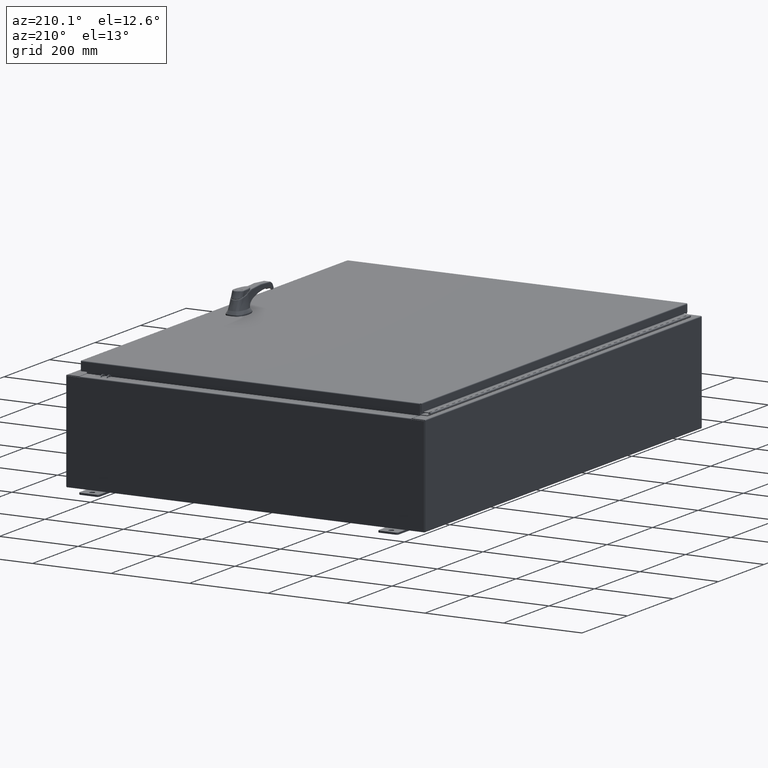
[diagram: clean part render]
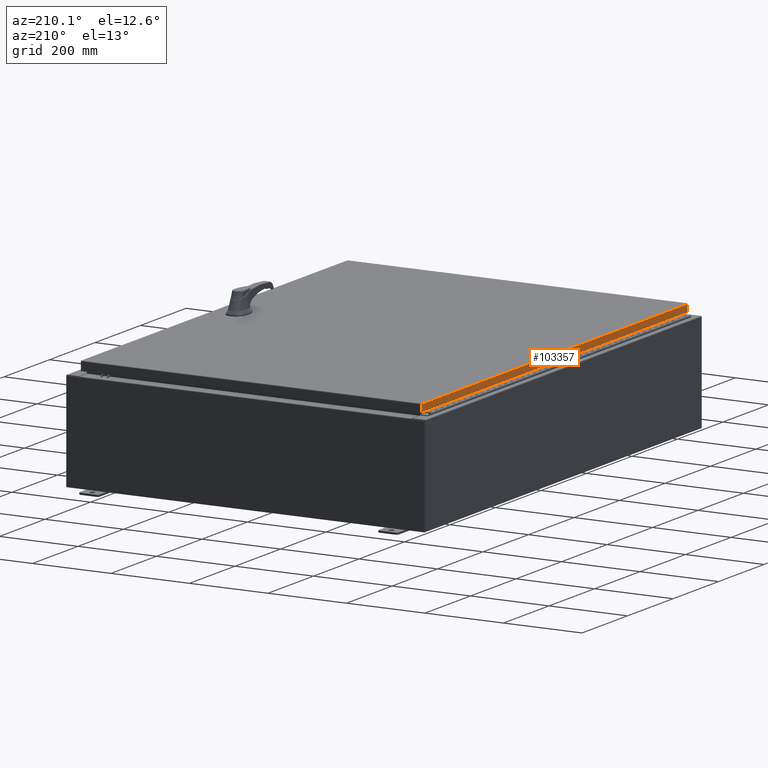
[diagram: same view with one face highlighted and labeled with its STEP entity id]
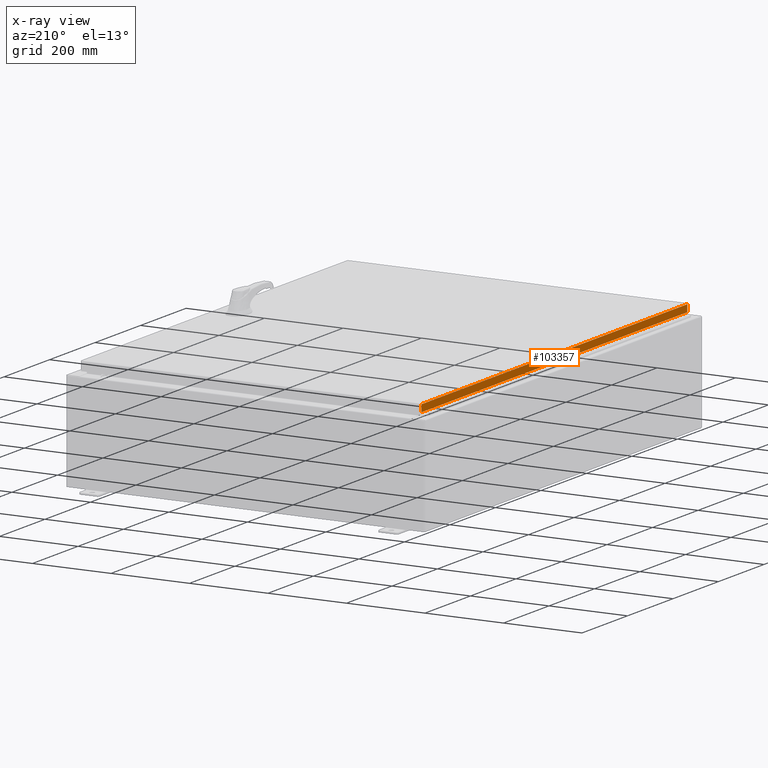
[diagram: x-ray of the same camera — body ghosted, the highlighted face saturated]
A machine part, auxiliary view. The second image highlights one B-rep face of the part: STEP entity #103357.
The next image is the same camera in x-ray: the body ghosted, the highlighted face saturated — about 0% of this face is hidden behind the body in this view.
In plain terms, the highlighted planar face has unit normal (1, -0, -0).
Its self-contained STEP definition (entity closure, byte-faithful):
#16031 = CARTESIAN_POINT ( 'NONE',  ( -17.07799999999999600, 23.00515786437627200, -0.08770000000000659200 ) ) ;
#18075 = CARTESIAN_POINT ( 'NONE',  ( -17.07799999999999600, 1.616160042809321200E-015, 5.207755671951099000E-014 ) ) ;
#19058 = VERTEX_POINT ( 'NONE', #82209 ) ;
#19286 = CARTESIAN_POINT ( 'NONE',  ( -17.07799999999999600, 23.00515786437627600, -0.7949999999999941600 ) ) ;
#19576 = VECTOR ( 'NONE', #85604, 39.37007874015748100 ) ;
#22822 = LINE ( 'NONE', #66329, #129802 ) ;
#24317 = VERTEX_POINT ( 'NONE', #86207 ) ;
#25080 = DIRECTION ( 'NONE',  ( -3.034122441942816100E-015, 6.982962677686267500E-015, -1.000000000000000000 ) ) ;
#25219 = EDGE_CURVE ( 'NONE', #19058, #72225, #133899, .T. ) ;
#25805 = VERTEX_POINT ( 'NONE', #16031 ) ;
#28487 = DIRECTION ( 'NONE',  ( -3.034122441942816500E-015, 0.0000000000000000000, -1.000000000000000000 ) ) ;
#33447 = DIRECTION ( 'NONE',  ( 9.463403459476099200E-017, 1.000000000000000000, 1.212498568245375300E-016 ) ) ;
#38856 = FACE_OUTER_BOUND ( 'NONE', #55901, .T. ) ;
#42279 = AXIS2_PLACEMENT_3D ( 'NONE', #18075, #90615, #28487 ) ;
#43983 = LINE ( 'NONE', #66539, #126760 ) ;
#52252 = ORIENTED_EDGE ( 'NONE', *, *, #25219, .F. ) ;
#55901 = EDGE_LOOP ( 'NONE', ( #88104, #120593, #52252, #123861 ) ) ;
#57579 = VECTOR ( 'NONE', #33447, 39.37007874015748100 ) ;
#59290 = EDGE_CURVE ( 'NONE', #24317, #19058, #43983, .T. ) ;
#66329 = CARTESIAN_POINT ( 'NONE',  ( -17.07799999999999600, 23.00515786437627200, 2.127217154807312100E-013 ) ) ;
#66539 = CARTESIAN_POINT ( 'NONE',  ( -17.07799999999999900, -23.00515786437627200, -0.07469999999999976700 ) ) ;
#69711 = PLANE ( 'NONE',  #42279 ) ;
#71445 = LINE ( 'NONE', #126803, #19576 ) ;
#71973 = EDGE_CURVE ( 'NONE', #25805, #72225, #22822, .T. ) ;
#72225 = VERTEX_POINT ( 'NONE', #19286 ) ;
#82209 = CARTESIAN_POINT ( 'NONE',  ( -17.07800000000000300, -23.00515786437626900, -0.7949999999999996000 ) ) ;
#85604 = DIRECTION ( 'NONE',  ( -9.463403459476019000E-017, -1.000000000000000000, 1.419510518921414800E-016 ) ) ;
#86207 = CARTESIAN_POINT ( 'NONE',  ( -17.07799999999999900, -23.00515786437626900, -0.08770000000000334500 ) ) ;
#88104 = ORIENTED_EDGE ( 'NONE', *, *, #116197, .F. ) ;
#90615 = DIRECTION ( 'NONE',  ( 1.000000000000000000, -9.463403459476060900E-017, -3.034122441942816500E-015 ) ) ;
#95552 = CARTESIAN_POINT ( 'NONE',  ( -17.07800000000000300, -23.09400000000000100, -0.7949999999999997100 ) ) ;
#103357 = ADVANCED_FACE ( 'NONE', ( #38856 ), #69711, .F. ) ;
#116197 = EDGE_CURVE ( 'NONE', #25805, #24317, #71445, .T. ) ;
#120593 = ORIENTED_EDGE ( 'NONE', *, *, #71973, .T. ) ;
#123861 = ORIENTED_EDGE ( 'NONE', *, *, #59290, .F. ) ;
#126760 = VECTOR ( 'NONE', #128595, 39.37007874015748100 ) ;
#126803 = CARTESIAN_POINT ( 'NONE',  ( -17.07799999999999900, -23.09400000000000100, -0.08770000000000004200 ) ) ;
#128595 = DIRECTION ( 'NONE',  ( -3.034122441942816100E-015, 6.982962677686267500E-015, -1.000000000000000000 ) ) ;
#129802 = VECTOR ( 'NONE', #25080, 39.37007874015748100 ) ;
#133899 = LINE ( 'NONE', #95552, #57579 ) ;